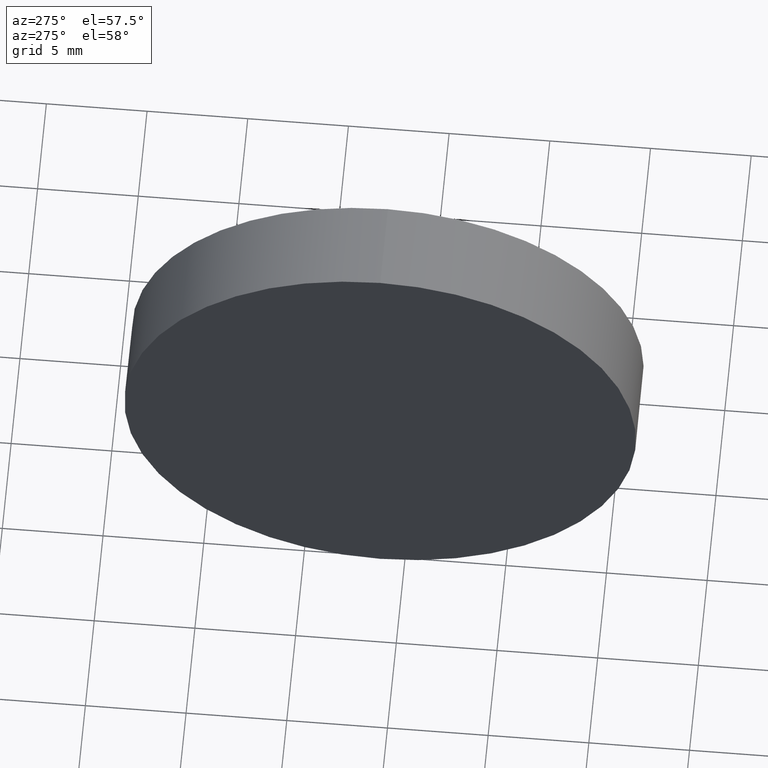
[diagram: clean part render]
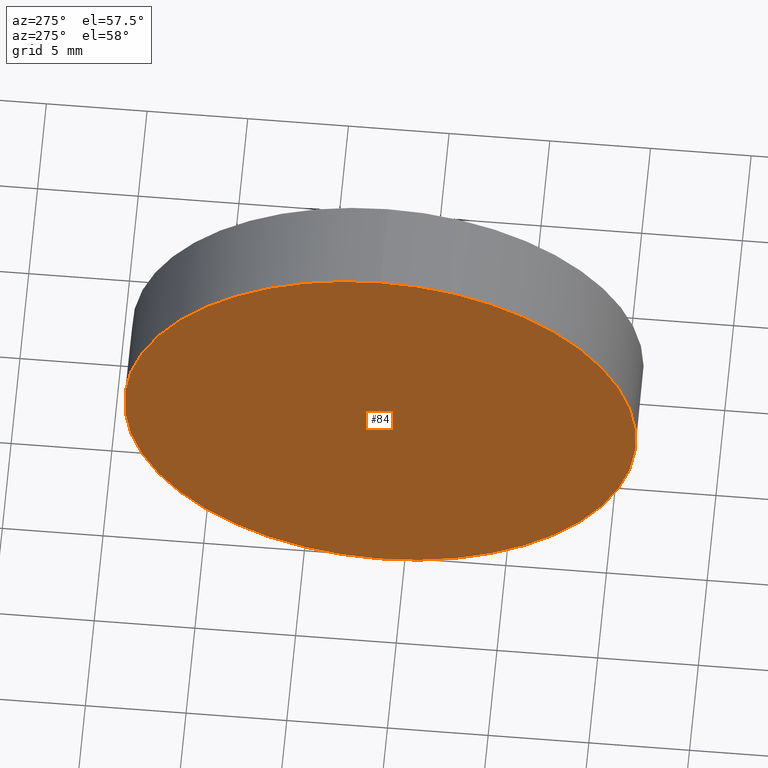
[diagram: same view with one face highlighted and labeled with its STEP entity id]
A machine part, auxiliary view. The second image highlights one B-rep face of the part: STEP entity #84.
In plain terms, the highlighted planar face has unit normal (1, 0, 0).
Its self-contained STEP definition (entity closure, byte-faithful):
#6 = CARTESIAN_POINT ( 'NONE',  ( 119.5068341785477100, 71.19398908659370300, 12.70000000000000300 ) ) ;
#10 = AXIS2_PLACEMENT_3D ( 'NONE', #186, #106, #134 ) ;
#11 = CARTESIAN_POINT ( 'NONE',  ( 119.5068341785477100, 71.19398908659370300, -12.70000000000000300 ) ) ;
#12 = ORIENTED_EDGE ( 'NONE', *, *, #96, .T. ) ;
#18 = FACE_OUTER_BOUND ( 'NONE', #41, .T. ) ;
#38 = DIRECTION ( 'NONE',  ( 1.000000000000000000, 0.0000000000000000000, 0.0000000000000000000 ) ) ;
#41 = EDGE_LOOP ( 'NONE', ( #12, #113 ) ) ;
#46 = EDGE_CURVE ( 'NONE', #80, #138, #181, .T. ) ;
#77 = CARTESIAN_POINT ( 'NONE',  ( 119.5068341785477100, 71.19398908659370300, 0.0000000000000000000 ) ) ;
#80 = VERTEX_POINT ( 'NONE', #11 ) ;
#84 = ADVANCED_FACE ( 'NONE', ( #18 ), #118, .F. ) ;
#86 = DIRECTION ( 'NONE',  ( -1.000000000000000000, -0.0000000000000000000, -0.0000000000000000000 ) ) ;
#96 = EDGE_CURVE ( 'NONE', #138, #80, #159, .T. ) ;
#106 = DIRECTION ( 'NONE',  ( -1.000000000000000000, -0.0000000000000000000, -0.0000000000000000000 ) ) ;
#113 = ORIENTED_EDGE ( 'NONE', *, *, #46, .T. ) ;
#116 = DIRECTION ( 'NONE',  ( 0.0000000000000000000, 0.0000000000000000000, 1.000000000000000000 ) ) ;
#118 = PLANE ( 'NONE',  #128 ) ;
#128 = AXIS2_PLACEMENT_3D ( 'NONE', #77, #38, #137 ) ;
#134 = DIRECTION ( 'NONE',  ( 0.0000000000000000000, 0.0000000000000000000, 1.000000000000000000 ) ) ;
#137 = DIRECTION ( 'NONE',  ( 0.0000000000000000000, 0.0000000000000000000, -1.000000000000000000 ) ) ;
#138 = VERTEX_POINT ( 'NONE', #6 ) ;
#153 = AXIS2_PLACEMENT_3D ( 'NONE', #178, #86, #116 ) ;
#159 = CIRCLE ( 'NONE', #10, 12.70000000000000300 ) ;
#178 = CARTESIAN_POINT ( 'NONE',  ( 119.5068341785477100, 71.19398908659370300, 0.0000000000000000000 ) ) ;
#181 = CIRCLE ( 'NONE', #153, 12.70000000000000300 ) ;
#186 = CARTESIAN_POINT ( 'NONE',  ( 119.5068341785477100, 71.19398908659370300, 0.0000000000000000000 ) ) ;